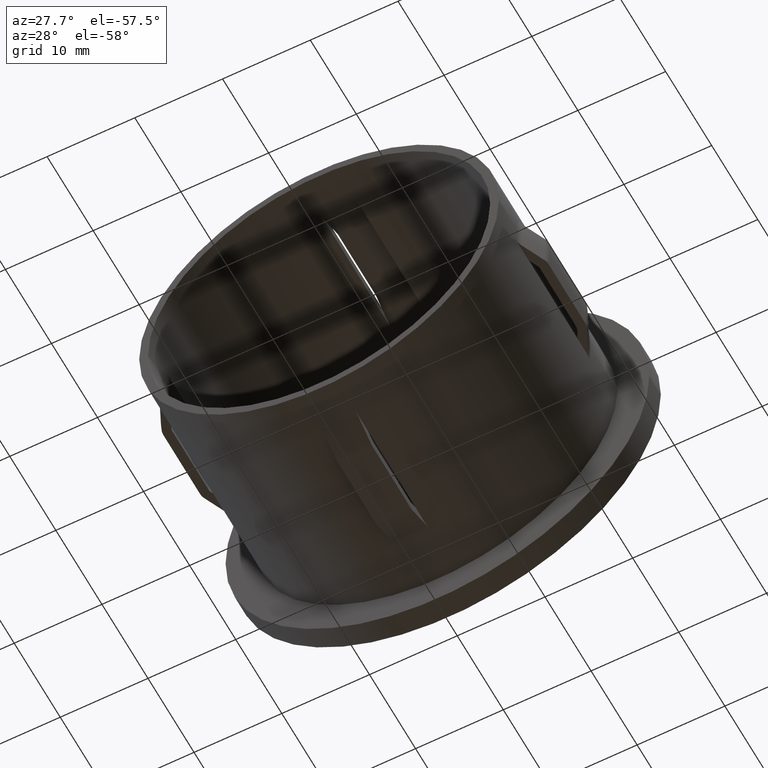
[diagram: clean part render]
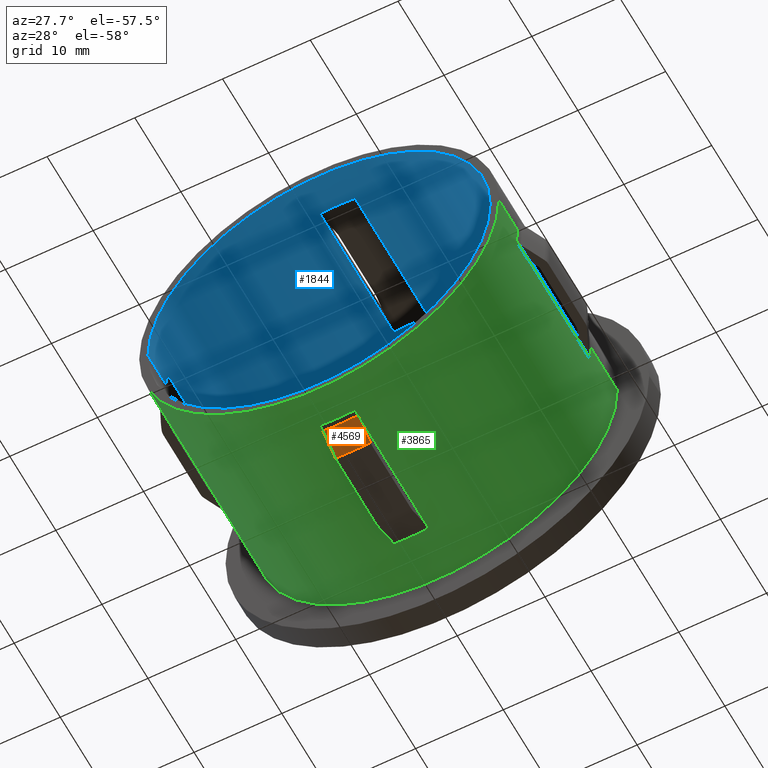
[diagram: same view with three faces highlighted in distinct colors, each labeled with its STEP entity id]
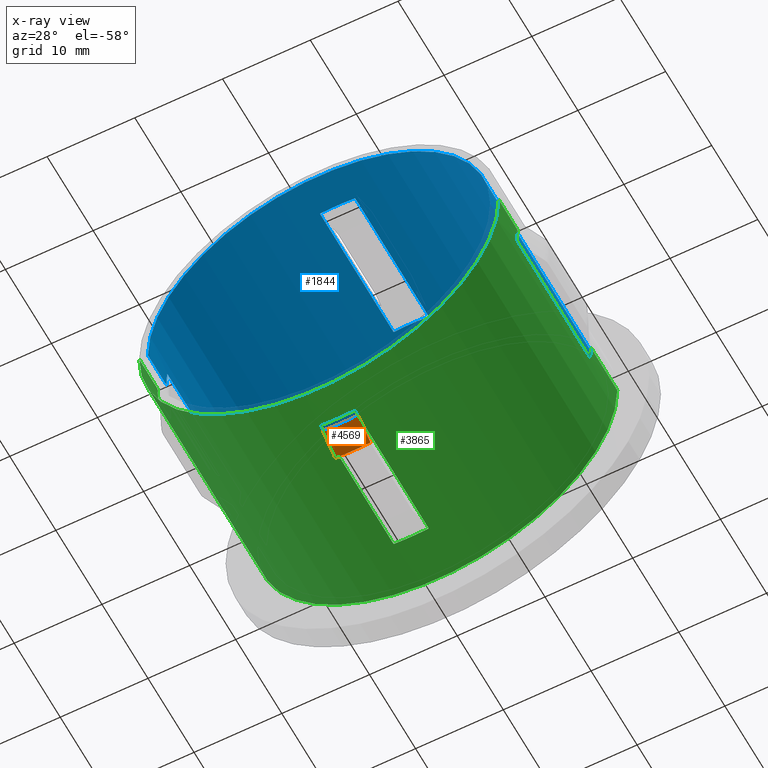
[diagram: x-ray of the same camera — body ghosted, the three highlighted faces saturated]
A machine part, auxiliary view with three faces highlighted in distinct colors.
The next image is the same camera in x-ray (body ghosted, the three faces saturated) — at least one of them is partly hidden behind the body in this view.
Their STEP definitions:

[orange] entity #4569 — the highlighted conical surface has half-angle 24.912 deg.
#146 = CARTESIAN_POINT ( 'NONE',  ( 3.795844060102767100E-015, 4.631843609663177700, 0.0000000000000000000 ) ) ;
#449 = CONICAL_SURFACE ( 'NONE', #12024, 20.63956857838117600, 0.4348000597357523100 ) ;
#711 = VERTEX_POINT ( 'NONE', #8914 ) ;
#966 = DIRECTION ( 'NONE',  ( -1.714505518806297100E-016, 1.000000000000000000, -0.0000000000000000000 ) ) ;
#1346 = CARTESIAN_POINT ( 'NONE',  ( -1.999999999999996200, 4.631843609663177700, -20.54243878174399300 ) ) ;
#1463 = DIRECTION ( 'NONE',  ( -1.000000000000000000, -1.680968736714618500E-016, 0.0000000000000000000 ) ) ;
#1592 = CARTESIAN_POINT ( 'NONE',  ( -1.999999999999995800, 7.368156390336815200, -21.81895976167198700 ) ) ;
#1671 = EDGE_CURVE ( 'NONE', #13816, #711, #5417, .T. ) ;
#1934 = VERTEX_POINT ( 'NONE', #1346 ) ;
#2588 = CIRCLE ( 'NONE', #8925, 20.63956857838117600 ) ;
#2893 = CARTESIAN_POINT ( 'NONE',  ( -1.999999999999995800, 6.863478173314466500, -21.58358256235698400 ) ) ;
#3004 = CARTESIAN_POINT ( 'NONE',  ( -1.999999999999995800, 7.368156390336815200, -21.81895976167198700 ) ) ;
#3233 = ORIENTED_EDGE ( 'NONE', *, *, #8762, .F. ) ;
#3391 = CARTESIAN_POINT ( 'NONE',  ( 2.000000000000004900, 6.863478173314466500, -21.58358256235698400 ) ) ;
#4178 = CARTESIAN_POINT ( 'NONE',  ( -1.999999999999996200, 6.358812098657115700, -21.34817932616023500 ) ) ;
#4514 = CARTESIAN_POINT ( 'NONE',  ( -1.999999999999996200, 4.631843609663177700, -20.54243878174399300 ) ) ;
#4569 = ADVANCED_FACE ( 'NONE', ( #12762 ), #449, .T. ) ;
#4913 = ORIENTED_EDGE ( 'NONE', *, *, #5712, .F. ) ;
#5276 = DIRECTION ( 'NONE',  ( -1.714505518806297100E-016, 1.000000000000000000, -0.0000000000000000000 ) ) ;
#5417 = B_SPLINE_CURVE_WITH_KNOTS ( 'NONE', 3,
 ( #7139, #3391, #10830, #6962, #8410, #5931, #15859 ),
 .UNSPECIFIED., .F., .F.,
 ( 4, 3, 4 ),
 ( 0.004488079101592272600, 0.006158684593522789300, 0.007507501781903045500 ),
 .UNSPECIFIED. ) ;
#5515 = CARTESIAN_POINT ( 'NONE',  ( -1.999999999999996200, 5.039272975901720700, -20.73256144329573300 ) ) ;
#5712 = EDGE_CURVE ( 'NONE', #13816, #14823, #15327, .T. ) ;
#5931 = CARTESIAN_POINT ( 'NONE',  ( 2.000000000000004900, 5.039272975901720700, -20.73256144329573300 ) ) ;
#6147 = CARTESIAN_POINT ( 'NONE',  ( 3.795844060102767100E-015, 4.631843609663177700, 0.0000000000000000000 ) ) ;
#6869 = ORIENTED_EDGE ( 'NONE', *, *, #1671, .T. ) ;
#6962 = CARTESIAN_POINT ( 'NONE',  ( 2.000000000000004900, 5.854159429651500300, -21.11274735645403700 ) ) ;
#7002 = EDGE_CURVE ( 'NONE', #711, #1934, #2588, .T. ) ;
#7115 = B_SPLINE_CURVE_WITH_KNOTS ( 'NONE', 3,
 ( #1592, #2893, #4178, #13050, #11847, #5515, #4514 ),
 .UNSPECIFIED., .F., .F.,
 ( 4, 3, 4 ),
 ( 0.004488079101592272600, 0.006158684593522790200, 0.007507501781903045500 ),
 .UNSPECIFIED. ) ;
#7139 = CARTESIAN_POINT ( 'NONE',  ( 2.000000000000004900, 7.368156390336815200, -21.81895976167198700 ) ) ;
#8410 = CARTESIAN_POINT ( 'NONE',  ( 2.000000000000004900, 5.446711832693329000, -20.92266376788819200 ) ) ;
#8654 = DIRECTION ( 'NONE',  ( -1.714505518806297100E-016, 1.000000000000000000, -0.0000000000000000000 ) ) ;
#8762 = EDGE_CURVE ( 'NONE', #14823, #1934, #7115, .T. ) ;
#8914 = CARTESIAN_POINT ( 'NONE',  ( 2.000000000000004900, 4.631843609663175900, -20.54243878174399600 ) ) ;
#8925 = AXIS2_PLACEMENT_3D ( 'NONE', #6147, #966, #12498 ) ;
#9951 = CARTESIAN_POINT ( 'NONE',  ( 2.000000000000004900, 7.368156390336815200, -21.81895976167198700 ) ) ;
#10236 = ORIENTED_EDGE ( 'NONE', *, *, #7002, .T. ) ;
#10279 = EDGE_LOOP ( 'NONE', ( #4913, #6869, #10236, #3233 ) ) ;
#10830 = CARTESIAN_POINT ( 'NONE',  ( 2.000000000000004900, 6.358812098657116600, -21.34817932616023500 ) ) ;
#11288 = DIRECTION ( 'NONE',  ( -1.000000000000000000, -1.583468113973485200E-016, 0.0000000000000000000 ) ) ;
#11847 = CARTESIAN_POINT ( 'NONE',  ( -1.999999999999996200, 5.446711832693328100, -20.92266376788819200 ) ) ;
#12024 = AXIS2_PLACEMENT_3D ( 'NONE', #146, #5276, #1463 ) ;
#12498 = DIRECTION ( 'NONE',  ( -1.000000000000000000, -1.680968736714618500E-016, 0.0000000000000000000 ) ) ;
#12506 = CARTESIAN_POINT ( 'NONE',  ( 3.326701723738251600E-015, 7.368156390336815200, 0.0000000000000000000 ) ) ;
#12762 = FACE_OUTER_BOUND ( 'NONE', #10279, .T. ) ;
#13050 = CARTESIAN_POINT ( 'NONE',  ( -1.999999999999996200, 5.854159429651499400, -21.11274735645403700 ) ) ;
#13816 = VERTEX_POINT ( 'NONE', #9951 ) ;
#14823 = VERTEX_POINT ( 'NONE', #3004 ) ;
#15327 = CIRCLE ( 'NONE', #15841, 21.91043142161882100 ) ;
#15841 = AXIS2_PLACEMENT_3D ( 'NONE', #12506, #8654, #11288 ) ;
#15859 = CARTESIAN_POINT ( 'NONE',  ( 2.000000000000004900, 4.631843609663175900, -20.54243878174399600 ) ) ;

[blue] entity #1844 — the highlighted cylindrical surface (partial cylindrical patch) has radius 19.5 mm, axis along (-0, 1, -0).
#3 = CIRCLE ( 'NONE', #8069, 19.50000000000000400 ) ;
#83 = CARTESIAN_POINT ( 'NONE',  ( 19.50000000000000400, 4.000000000000000000, 2.388061258337339300E-015 ) ) ;
#166 = CARTESIAN_POINT ( 'NONE',  ( -2.449293598294708900E-016, 28.19999999999999900, 0.0000000000000000000 ) ) ;
#264 = FACE_OUTER_BOUND ( 'NONE', #10807, .T. ) ;
#343 = CARTESIAN_POINT ( 'NONE',  ( 19.50000000000000400, -1.261611902813349400E-016, 2.388061258337339300E-015 ) ) ;
#522 = CARTESIAN_POINT ( 'NONE',  ( 1.836970198721037800E-016, 25.69999999999999600, 0.0000000000000000000 ) ) ;
#818 = CARTESIAN_POINT ( 'NONE',  ( 2.000000000000004900, 4.000000000008302700, 19.39716474127082400 ) ) ;
#883 = CIRCLE ( 'NONE', #6111, 19.50000000000000400 ) ;
#1295 = DIRECTION ( 'NONE',  ( -1.000000000000000000, -1.779203565104417600E-016, 0.0000000000000000000 ) ) ;
#1448 = ORIENTED_EDGE ( 'NONE', *, *, #8375, .T. ) ;
#1487 = AXIS2_PLACEMENT_3D ( 'NONE', #3052, #11956, #8146 ) ;
#1562 = CIRCLE ( 'NONE', #13412, 19.50000000000000000 ) ;
#1640 = CARTESIAN_POINT ( 'NONE',  ( 19.50000000000000400, 28.20000000000000300, 2.388061258337339300E-015 ) ) ;
#1663 = CARTESIAN_POINT ( 'NONE',  ( -19.39716474127082100, 3.999999999999993300, 2.000000000000000000 ) ) ;
#1787 = ORIENTED_EDGE ( 'NONE', *, *, #8908, .T. ) ;
#1804 = EDGE_CURVE ( 'NONE', #3043, #13221, #883, .T. ) ;
#1844 = ADVANCED_FACE ( 'NONE', ( #264, #10654 ), #6436, .F. ) ;
#1977 = EDGE_CURVE ( 'NONE', #6682, #16232, #5264, .T. ) ;
#2231 = CARTESIAN_POINT ( 'NONE',  ( 2.000000000000004900, 51.72464896776082800, 19.39716474127082400 ) ) ;
#2837 = VECTOR ( 'NONE', #10950, 1000.000000000000000 ) ;
#2887 = EDGE_CURVE ( 'NONE', #9635, #12101, #5045, .T. ) ;
#2943 = VECTOR ( 'NONE', #14405, 1000.000000000000000 ) ;
#3043 = VERTEX_POINT ( 'NONE', #11777 ) ;
#3052 = CARTESIAN_POINT ( 'NONE',  ( 3.904173995681768100E-015, 3.999999999999996400, 0.0000000000000000000 ) ) ;
#3207 = CARTESIAN_POINT ( 'NONE',  ( 2.000000000000007100, 19.99999999999999300, 19.39716474127082400 ) ) ;
#3209 = DIRECTION ( 'NONE',  ( -1.000000000000000000, -1.714505518806296900E-016, 0.0000000000000000000 ) ) ;
#3231 = CARTESIAN_POINT ( 'NONE',  ( -19.50000000000000400, 28.19999999999999600, 0.0000000000000000000 ) ) ;
#3337 = LINE ( 'NONE', #10120, #16411 ) ;
#3363 = LINE ( 'NONE', #1640, #2943 ) ;
#3375 = EDGE_CURVE ( 'NONE', #11414, #9888, #6809, .T. ) ;
#3446 = DIRECTION ( 'NONE',  ( -1.714505518806297100E-016, 1.000000000000000000, -0.0000000000000000000 ) ) ;
#3858 = EDGE_CURVE ( 'NONE', #9635, #4563, #9605, .T. ) ;
#4230 = CARTESIAN_POINT ( 'NONE',  ( -19.49999999999999600, -6.812732713625892700E-015, 0.0000000000000000000 ) ) ;
#4258 = ORIENTED_EDGE ( 'NONE', *, *, #6521, .F. ) ;
#4472 = AXIS2_PLACEMENT_3D ( 'NONE', #6847, #15735, #3209 ) ;
#4563 = VERTEX_POINT ( 'NONE', #5109 ) ;
#4985 = EDGE_CURVE ( 'NONE', #8084, #11954, #14746, .T. ) ;
#5045 = CIRCLE ( 'NONE', #11767, 19.50000000000000400 ) ;
#5049 = ORIENTED_EDGE ( 'NONE', *, *, #9883, .F. ) ;
#5101 = CARTESIAN_POINT ( 'NONE',  ( 3.904173995681768100E-015, 3.999999999999996400, 0.0000000000000000000 ) ) ;
#5109 = CARTESIAN_POINT ( 'NONE',  ( -1.999999999999996200, 4.000000000016615200, 19.39716474127082100 ) ) ;
#5129 = DIRECTION ( 'NONE',  ( 0.0000000000000000000, -1.000000000000000000, 0.0000000000000000000 ) ) ;
#5264 = CIRCLE ( 'NONE', #8969, 19.50000000000000000 ) ;
#5661 = CARTESIAN_POINT ( 'NONE',  ( -19.39716474127082800, 19.99999999999998900, 2.000000000000000000 ) ) ;
#6018 = ORIENTED_EDGE ( 'NONE', *, *, #6097, .F. ) ;
#6091 = CARTESIAN_POINT ( 'NONE',  ( -19.50000000000000400, 19.99999999999998900, 0.0000000000000000000 ) ) ;
#6097 = EDGE_CURVE ( 'NONE', #12101, #12599, #12751, .T. ) ;
#6111 = AXIS2_PLACEMENT_3D ( 'NONE', #7717, #10299, #6440 ) ;
#6213 = CARTESIAN_POINT ( 'NONE',  ( 3.904173995681768100E-015, 3.999999999999996400, 0.0000000000000000000 ) ) ;
#6436 = CYLINDRICAL_SURFACE ( 'NONE', #15785, 19.50000000000000400 ) ;
#6440 = DIRECTION ( 'NONE',  ( -1.000000000000000000, -1.779203565104417100E-016, 0.0000000000000000000 ) ) ;
#6484 = DIRECTION ( 'NONE',  ( -1.714505518806297100E-016, 1.000000000000000000, -0.0000000000000000000 ) ) ;
#6521 = EDGE_CURVE ( 'NONE', #10727, #11197, #3, .T. ) ;
#6638 = VERTEX_POINT ( 'NONE', #83 ) ;
#6682 = VERTEX_POINT ( 'NONE', #15527 ) ;
#6769 = CARTESIAN_POINT ( 'NONE',  ( 19.39716474127082800, 51.72464896776082800, 2.000000000000000000 ) ) ;
#6809 = CIRCLE ( 'NONE', #13900, 19.50000000000000000 ) ;
#6847 = CARTESIAN_POINT ( 'NONE',  ( 4.589976203204287100E-015, -3.469446951953614200E-015, 0.0000000000000000000 ) ) ;
#6883 = EDGE_CURVE ( 'NONE', #10727, #6682, #12364, .T. ) ;
#6963 = CARTESIAN_POINT ( 'NONE',  ( -1.999999999999996200, 51.72464896776082800, 19.39716474127082100 ) ) ;
#7370 = DIRECTION ( 'NONE',  ( -1.714505518806297100E-016, 1.000000000000000000, -0.0000000000000000000 ) ) ;
#7425 = DIRECTION ( 'NONE',  ( -1.000000000000000000, -1.779203565104417100E-016, 0.0000000000000000000 ) ) ;
#7450 = ORIENTED_EDGE ( 'NONE', *, *, #2887, .F. ) ;
#7551 = VECTOR ( 'NONE', #3446, 1000.000000000000000 ) ;
#7717 = CARTESIAN_POINT ( 'NONE',  ( 1.160965165591693700E-015, 19.99999999999999300, 0.0000000000000000000 ) ) ;
#8013 = DIRECTION ( 'NONE',  ( -1.000000000000000000, -1.779203565104417600E-016, 0.0000000000000000000 ) ) ;
#8069 = AXIS2_PLACEMENT_3D ( 'NONE', #14917, #16158, #7425 ) ;
#8084 = VERTEX_POINT ( 'NONE', #4230 ) ;
#8146 = DIRECTION ( 'NONE',  ( -1.000000000000000000, -1.779203565104417600E-016, 0.0000000000000000000 ) ) ;
#8375 = EDGE_CURVE ( 'NONE', #13593, #6638, #1562, .T. ) ;
#8405 = CARTESIAN_POINT ( 'NONE',  ( -1.999999999999995300, 19.99999999999999300, 19.39716474127082800 ) ) ;
#8623 = ORIENTED_EDGE ( 'NONE', *, *, #6883, .T. ) ;
#8810 = ORIENTED_EDGE ( 'NONE', *, *, #1977, .T. ) ;
#8874 = CIRCLE ( 'NONE', #1487, 19.50000000000000000 ) ;
#8908 = EDGE_CURVE ( 'NONE', #8084, #11414, #12518, .T. ) ;
#8924 = DIRECTION ( 'NONE',  ( -1.714505518806297100E-016, 1.000000000000000000, -0.0000000000000000000 ) ) ;
#8939 = ORIENTED_EDGE ( 'NONE', *, *, #3375, .T. ) ;
#8969 = AXIS2_PLACEMENT_3D ( 'NONE', #522, #10605, #8013 ) ;
#9064 = DIRECTION ( 'NONE',  ( -1.000000000000000000, -1.779203565104417100E-016, 0.0000000000000000000 ) ) ;
#9297 = LINE ( 'NONE', #6769, #14431 ) ;
#9443 = DIRECTION ( 'NONE',  ( 0.0000000000000000000, -1.000000000000000000, 0.0000000000000000000 ) ) ;
#9561 = CARTESIAN_POINT ( 'NONE',  ( -19.49999999999999600, 3.999999999999993300, 0.0000000000000000000 ) ) ;
#9605 = LINE ( 'NONE', #6963, #2837 ) ;
#9635 = VERTEX_POINT ( 'NONE', #8405 ) ;
#9883 = EDGE_CURVE ( 'NONE', #11197, #9888, #15468, .T. ) ;
#9888 = VERTEX_POINT ( 'NONE', #1663 ) ;
#10120 = CARTESIAN_POINT ( 'NONE',  ( 19.50000000000000400, 28.20000000000000300, 2.388061258337339300E-015 ) ) ;
#10126 = VECTOR ( 'NONE', #10745, 1000.000000000000000 ) ;
#10265 = ORIENTED_EDGE ( 'NONE', *, *, #4985, .F. ) ;
#10299 = DIRECTION ( 'NONE',  ( -1.714505518806297100E-016, 1.000000000000000000, -0.0000000000000000000 ) ) ;
#10404 = EDGE_CURVE ( 'NONE', #13221, #16232, #3363, .T. ) ;
#10585 = DIRECTION ( 'NONE',  ( 0.0000000000000000000, -1.000000000000000000, 0.0000000000000000000 ) ) ;
#10605 = DIRECTION ( 'NONE',  ( -1.714505518806297100E-016, 1.000000000000000000, -0.0000000000000000000 ) ) ;
#10654 = FACE_BOUND ( 'NONE', #12807, .T. ) ;
#10727 = VERTEX_POINT ( 'NONE', #6091 ) ;
#10745 = DIRECTION ( 'NONE',  ( -1.714505518806297100E-016, 1.000000000000000000, -0.0000000000000000000 ) ) ;
#10807 = EDGE_LOOP ( 'NONE', ( #13812, #10265, #1787, #8939, #5049, #4258, #8623, #8810, #13620, #14455, #14368, #1448 ) ) ;
#10950 = DIRECTION ( 'NONE',  ( 0.0000000000000000000, -1.000000000000000000, 0.0000000000000000000 ) ) ;
#11197 = VERTEX_POINT ( 'NONE', #5661 ) ;
#11414 = VERTEX_POINT ( 'NONE', #9561 ) ;
#11578 = DIRECTION ( 'NONE',  ( -1.714505518806297100E-016, 1.000000000000000000, -0.0000000000000000000 ) ) ;
#11596 = EDGE_CURVE ( 'NONE', #4563, #12599, #8874, .T. ) ;
#11747 = CARTESIAN_POINT ( 'NONE',  ( -19.39716474127082100, 51.72464896776082800, 2.000000000000000000 ) ) ;
#11767 = AXIS2_PLACEMENT_3D ( 'NONE', #16472, #7370, #16268 ) ;
#11777 = CARTESIAN_POINT ( 'NONE',  ( 19.39716474127082800, 19.99999999999998900, 2.000000000000000000 ) ) ;
#11954 = VERTEX_POINT ( 'NONE', #343 ) ;
#11956 = DIRECTION ( 'NONE',  ( -1.714505518806297100E-016, 1.000000000000000000, -0.0000000000000000000 ) ) ;
#12101 = VERTEX_POINT ( 'NONE', #3207 ) ;
#12133 = VECTOR ( 'NONE', #10585, 1000.000000000000000 ) ;
#12364 = LINE ( 'NONE', #14903, #7551 ) ;
#12518 = LINE ( 'NONE', #3231, #10126 ) ;
#12599 = VERTEX_POINT ( 'NONE', #818 ) ;
#12751 = LINE ( 'NONE', #2231, #15532 ) ;
#12807 = EDGE_LOOP ( 'NONE', ( #13984, #6018, #7450, #15006 ) ) ;
#13180 = CARTESIAN_POINT ( 'NONE',  ( 19.50000000000000400, 19.99999999999999600, 2.388061258337339300E-015 ) ) ;
#13221 = VERTEX_POINT ( 'NONE', #13180 ) ;
#13412 = AXIS2_PLACEMENT_3D ( 'NONE', #5101, #8924, #1295 ) ;
#13593 = VERTEX_POINT ( 'NONE', #15429 ) ;
#13620 = ORIENTED_EDGE ( 'NONE', *, *, #10404, .F. ) ;
#13812 = ORIENTED_EDGE ( 'NONE', *, *, #15842, .F. ) ;
#13900 = AXIS2_PLACEMENT_3D ( 'NONE', #6213, #16369, #15044 ) ;
#13984 = ORIENTED_EDGE ( 'NONE', *, *, #11596, .T. ) ;
#14368 = ORIENTED_EDGE ( 'NONE', *, *, #14924, .T. ) ;
#14405 = DIRECTION ( 'NONE',  ( -1.714505518806297100E-016, 1.000000000000000000, -0.0000000000000000000 ) ) ;
#14431 = VECTOR ( 'NONE', #9443, 1000.000000000000000 ) ;
#14455 = ORIENTED_EDGE ( 'NONE', *, *, #1804, .F. ) ;
#14746 = CIRCLE ( 'NONE', #4472, 19.50000000000000000 ) ;
#14903 = CARTESIAN_POINT ( 'NONE',  ( -19.50000000000000400, 28.19999999999999600, 0.0000000000000000000 ) ) ;
#14917 = CARTESIAN_POINT ( 'NONE',  ( 1.160965165591693700E-015, 19.99999999999999300, 0.0000000000000000000 ) ) ;
#14924 = EDGE_CURVE ( 'NONE', #3043, #13593, #9297, .T. ) ;
#15006 = ORIENTED_EDGE ( 'NONE', *, *, #3858, .T. ) ;
#15044 = DIRECTION ( 'NONE',  ( -1.000000000000000000, -1.779203565104417600E-016, 0.0000000000000000000 ) ) ;
#15244 = CARTESIAN_POINT ( 'NONE',  ( 19.50000000000000000, 25.69999999999999900, 2.388061258337338900E-015 ) ) ;
#15429 = CARTESIAN_POINT ( 'NONE',  ( 19.39716474127082800, 4.000000000000000000, 1.999999999999999600 ) ) ;
#15468 = LINE ( 'NONE', #11747, #12133 ) ;
#15527 = CARTESIAN_POINT ( 'NONE',  ( -19.50000000000000000, 25.69999999999999200, 0.0000000000000000000 ) ) ;
#15532 = VECTOR ( 'NONE', #5129, 1000.000000000000000 ) ;
#15735 = DIRECTION ( 'NONE',  ( -1.714505518806297100E-016, 1.000000000000000000, -0.0000000000000000000 ) ) ;
#15785 = AXIS2_PLACEMENT_3D ( 'NONE', #166, #11578, #9064 ) ;
#15842 = EDGE_CURVE ( 'NONE', #11954, #6638, #3337, .T. ) ;
#16158 = DIRECTION ( 'NONE',  ( -1.714505518806297100E-016, 1.000000000000000000, -0.0000000000000000000 ) ) ;
#16232 = VERTEX_POINT ( 'NONE', #15244 ) ;
#16268 = DIRECTION ( 'NONE',  ( -1.000000000000000000, -1.779203565104417100E-016, 0.0000000000000000000 ) ) ;
#16369 = DIRECTION ( 'NONE',  ( -1.714505518806297100E-016, 1.000000000000000000, -0.0000000000000000000 ) ) ;
#16411 = VECTOR ( 'NONE', #6484, 1000.000000000000000 ) ;
#16472 = CARTESIAN_POINT ( 'NONE',  ( 1.160965165591693700E-015, 19.99999999999999300, 0.0000000000000000000 ) ) ;

[green] entity #3865 — the highlighted cylindrical surface (partial cylindrical patch) has radius 20.5 mm, axis along (-0, 1, -0).
#16 = CIRCLE ( 'NONE', #10200, 20.50000000000000000 ) ;
#22 = DIRECTION ( 'NONE',  ( 0.0000000000000000000, -1.000000000000000000, 0.0000000000000000000 ) ) ;
#52 = CARTESIAN_POINT ( 'NONE',  ( -20.40220576310316500, 20.00000000000000000, -2.000000000000000000 ) ) ;
#56 = AXIS2_PLACEMENT_3D ( 'NONE', #1912, #13358, #5646 ) ;
#75 = CIRCLE ( 'NONE', #5582, 20.49999999999999600 ) ;
#416 = VERTEX_POINT ( 'NONE', #3109 ) ;
#437 = ORIENTED_EDGE ( 'NONE', *, *, #6281, .T. ) ;
#556 = VERTEX_POINT ( 'NONE', #8649 ) ;
#599 = EDGE_CURVE ( 'NONE', #7735, #9993, #13129, .T. ) ;
#619 = VECTOR ( 'NONE', #12541, 1000.000000000000000 ) ;
#643 = VECTOR ( 'NONE', #16328, 1000.000000000000000 ) ;
#1010 = VECTOR ( 'NONE', #12968, 1000.000000000000000 ) ;
#1189 = EDGE_CURVE ( 'NONE', #15552, #10455, #14598, .T. ) ;
#1377 = CARTESIAN_POINT ( 'NONE',  ( 3.904173995681768100E-015, 3.999999999999996400, 0.0000000000000000000 ) ) ;
#1548 = VECTOR ( 'NONE', #2843, 1000.000000000000000 ) ;
#1629 = VECTOR ( 'NONE', #12592, 1000.000000000000000 ) ;
#1639 = ORIENTED_EDGE ( 'NONE', *, *, #599, .F. ) ;
#1774 = AXIS2_PLACEMENT_3D ( 'NONE', #12723, #7801, #11610 ) ;
#1897 = EDGE_CURVE ( 'NONE', #4029, #16092, #75, .T. ) ;
#1912 = CARTESIAN_POINT ( 'NONE',  ( -2.449293598294708900E-016, 28.19999999999999900, 0.0000000000000000000 ) ) ;
#1919 = AXIS2_PLACEMENT_3D ( 'NONE', #7306, #13690, #7463 ) ;
#1958 = DIRECTION ( 'NONE',  ( -1.714505518806297100E-016, 1.000000000000000000, -0.0000000000000000000 ) ) ;
#1976 = VECTOR ( 'NONE', #15932, 1000.000000000000000 ) ;
#2179 = DIRECTION ( 'NONE',  ( -1.000000000000000000, -1.692413147294446000E-016, 0.0000000000000000000 ) ) ;
#2333 = ORIENTED_EDGE ( 'NONE', *, *, #2349, .T. ) ;
#2349 = EDGE_CURVE ( 'NONE', #4517, #12691, #8829, .T. ) ;
#2375 = EDGE_CURVE ( 'NONE', #14462, #7395, #11430, .T. ) ;
#2392 = CARTESIAN_POINT ( 'NONE',  ( -20.40220576310316500, 20.00000000000000000, -2.000000000000000000 ) ) ;
#2459 = EDGE_CURVE ( 'NONE', #12691, #12992, #6420, .T. ) ;
#2539 = CARTESIAN_POINT ( 'NONE',  ( 1.160965165591693700E-015, 19.99999999999999300, 0.0000000000000000000 ) ) ;
#2843 = DIRECTION ( 'NONE',  ( -1.714505518806297100E-016, 1.000000000000000000, -0.0000000000000000000 ) ) ;
#2902 = DIRECTION ( 'NONE',  ( -1.714505518806297100E-016, 1.000000000000000000, -0.0000000000000000000 ) ) ;
#2982 = CARTESIAN_POINT ( 'NONE',  ( -20.49999999999999600, 28.19999999999999600, 0.0000000000000000000 ) ) ;
#3074 = VECTOR ( 'NONE', #11602, 1000.000000000000000 ) ;
#3109 = CARTESIAN_POINT ( 'NONE',  ( 20.50000000000000700, 4.528936159929513800E-017, 2.510525938252074900E-015 ) ) ;
#3143 = EDGE_CURVE ( 'NONE', #14049, #15161, #7596, .T. ) ;
#3240 = DIRECTION ( 'NONE',  ( -1.714505518806297100E-016, 1.000000000000000000, -0.0000000000000000000 ) ) ;
#3289 = CARTESIAN_POINT ( 'NONE',  ( -20.49999999999999600, 25.69999999999999200, 0.0000000000000000000 ) ) ;
#3327 = CARTESIAN_POINT ( 'NONE',  ( -20.49999999999999300, 3.999999999999993300, 0.0000000000000000000 ) ) ;
#3339 = EDGE_CURVE ( 'NONE', #4517, #4029, #13578, .T. ) ;
#3405 = VERTEX_POINT ( 'NONE', #13666 ) ;
#3460 = VERTEX_POINT ( 'NONE', #2392 ) ;
#3781 = CARTESIAN_POINT ( 'NONE',  ( 20.40220576310317200, 20.00000000000000000, -2.000000000000000000 ) ) ;
#3811 = ORIENTED_EDGE ( 'NONE', *, *, #9910, .T. ) ;
#3831 = DIRECTION ( 'NONE',  ( -0.0000000000000000000, -1.000000000000000000, -0.0000000000000000000 ) ) ;
#3865 = ADVANCED_FACE ( 'NONE', ( #15345, #11598 ), #8608, .T. ) ;
#4029 = VERTEX_POINT ( 'NONE', #4773 ) ;
#4093 = AXIS2_PLACEMENT_3D ( 'NONE', #2539, #13905, #7739 ) ;
#4098 = EDGE_CURVE ( 'NONE', #7395, #556, #8592, .T. ) ;
#4239 = CARTESIAN_POINT ( 'NONE',  ( -20.49999999999999600, 28.19999999999999600, 0.0000000000000000000 ) ) ;
#4473 = ORIENTED_EDGE ( 'NONE', *, *, #11438, .T. ) ;
#4516 = CARTESIAN_POINT ( 'NONE',  ( 2.000000000000005300, 19.99999999999999300, -20.40220576310316900 ) ) ;
#4517 = VERTEX_POINT ( 'NONE', #6209 ) ;
#4561 = EDGE_CURVE ( 'NONE', #556, #9677, #15326, .T. ) ;
#4773 = CARTESIAN_POINT ( 'NONE',  ( 20.49999999999999600, 25.69999999999999900, 2.510525938252074100E-015 ) ) ;
#4842 = EDGE_CURVE ( 'NONE', #12992, #3405, #4857, .T. ) ;
#4857 = LINE ( 'NONE', #10556, #1629 ) ;
#4912 = CARTESIAN_POINT ( 'NONE',  ( 2.000000000000004900, 3.999999999999993300, -20.40220576310316900 ) ) ;
#5146 = ORIENTED_EDGE ( 'NONE', *, *, #2375, .F. ) ;
#5190 = EDGE_CURVE ( 'NONE', #9993, #15780, #10819, .T. ) ;
#5231 = ORIENTED_EDGE ( 'NONE', *, *, #1897, .F. ) ;
#5519 = VECTOR ( 'NONE', #3831, 1000.000000000000000 ) ;
#5522 = EDGE_CURVE ( 'NONE', #3405, #10455, #14529, .T. ) ;
#5574 = DIRECTION ( 'NONE',  ( -1.000000000000000000, -1.692413147294446000E-016, 0.0000000000000000000 ) ) ;
#5582 = AXIS2_PLACEMENT_3D ( 'NONE', #12754, #14008, #15296 ) ;
#5646 = DIRECTION ( 'NONE',  ( -1.000000000000000000, -1.692413147294446200E-016, 0.0000000000000000000 ) ) ;
#5668 = DIRECTION ( 'NONE',  ( 0.0000000000000000000, -1.000000000000000000, 0.0000000000000000000 ) ) ;
#5807 = EDGE_CURVE ( 'NONE', #9004, #16092, #8383, .T. ) ;
#6161 = DIRECTION ( 'NONE',  ( -0.0000000000000000000, -1.000000000000000000, -0.0000000000000000000 ) ) ;
#6209 = CARTESIAN_POINT ( 'NONE',  ( 20.50000000000000000, 19.99999999999999600, 2.510525938252074500E-015 ) ) ;
#6257 = ORIENTED_EDGE ( 'NONE', *, *, #2459, .T. ) ;
#6281 = EDGE_CURVE ( 'NONE', #3460, #9004, #16, .T. ) ;
#6372 = CIRCLE ( 'NONE', #13804, 20.50000000000000000 ) ;
#6404 = EDGE_CURVE ( 'NONE', #416, #14806, #6372, .T. ) ;
#6420 = LINE ( 'NONE', #11773, #3074 ) ;
#6598 = EDGE_CURVE ( 'NONE', #3460, #14462, #10985, .T. ) ;
#6703 = ORIENTED_EDGE ( 'NONE', *, *, #10639, .F. ) ;
#6730 = CARTESIAN_POINT ( 'NONE',  ( -1.999999999999996200, 20.00000000000000000, -20.40220576310316900 ) ) ;
#6773 = CARTESIAN_POINT ( 'NONE',  ( 1.160965165591693700E-015, 19.99999999999999300, 0.0000000000000000000 ) ) ;
#6785 = CARTESIAN_POINT ( 'NONE',  ( 2.000000000000004900, 17.29465829608850300, -20.40220576310316900 ) ) ;
#6801 = DIRECTION ( 'NONE',  ( -1.714505518806297100E-016, 1.000000000000000000, -0.0000000000000000000 ) ) ;
#6912 = VERTEX_POINT ( 'NONE', #14689 ) ;
#6921 = LINE ( 'NONE', #13278, #7319 ) ;
#7168 = CARTESIAN_POINT ( 'NONE',  ( 20.49999999999999600, 28.20000000000000300, 2.510525938252074100E-015 ) ) ;
#7173 = CARTESIAN_POINT ( 'NONE',  ( -20.40220576310316500, 17.29465829608850300, -2.000000000000000000 ) ) ;
#7225 = ORIENTED_EDGE ( 'NONE', *, *, #5190, .F. ) ;
#7230 = VECTOR ( 'NONE', #22, 1000.000000000000000 ) ;
#7295 = VECTOR ( 'NONE', #6801, 1000.000000000000000 ) ;
#7306 = CARTESIAN_POINT ( 'NONE',  ( 3.904173995681768100E-015, 3.999999999999996400, 0.0000000000000000000 ) ) ;
#7319 = VECTOR ( 'NONE', #5668, 1000.000000000000000 ) ;
#7395 = VERTEX_POINT ( 'NONE', #12064 ) ;
#7440 = CARTESIAN_POINT ( 'NONE',  ( -1.999999999999996200, 17.29465829608850000, -20.40220576310316900 ) ) ;
#7462 = CIRCLE ( 'NONE', #8323, 20.50000000000000000 ) ;
#7463 = DIRECTION ( 'NONE',  ( -1.000000000000000000, -1.692413147294446200E-016, 0.0000000000000000000 ) ) ;
#7596 = LINE ( 'NONE', #6730, #12220 ) ;
#7672 = CARTESIAN_POINT ( 'NONE',  ( 2.000000000000004900, 51.72464896776082800, -20.40220576310316900 ) ) ;
#7735 = VERTEX_POINT ( 'NONE', #6785 ) ;
#7739 = DIRECTION ( 'NONE',  ( -1.000000000000000000, -1.692413147294446000E-016, 0.0000000000000000000 ) ) ;
#7772 = VECTOR ( 'NONE', #16109, 1000.000000000000000 ) ;
#7801 = DIRECTION ( 'NONE',  ( -1.714505518806297100E-016, 1.000000000000000000, -0.0000000000000000000 ) ) ;
#7936 = CARTESIAN_POINT ( 'NONE',  ( -20.49999999999999600, -6.984183265506524500E-015, 0.0000000000000000000 ) ) ;
#7995 = DIRECTION ( 'NONE',  ( -1.000000000000000000, -1.692413147294446200E-016, 0.0000000000000000000 ) ) ;
#8088 = CARTESIAN_POINT ( 'NONE',  ( 20.40220576310317200, 3.999999999999989800, -2.000000000000000000 ) ) ;
#8169 = EDGE_CURVE ( 'NONE', #13692, #7735, #8739, .T. ) ;
#8266 = CARTESIAN_POINT ( 'NONE',  ( 2.000000000000004900, 20.00000000000000000, -20.40220576310316900 ) ) ;
#8318 = LINE ( 'NONE', #4239, #1548 ) ;
#8323 = AXIS2_PLACEMENT_3D ( 'NONE', #11101, #15056, #2179 ) ;
#8383 = LINE ( 'NONE', #2982, #1010 ) ;
#8492 = ORIENTED_EDGE ( 'NONE', *, *, #6598, .F. ) ;
#8592 = LINE ( 'NONE', #52, #619 ) ;
#8608 = CYLINDRICAL_SURFACE ( 'NONE', #56, 20.49999999999999600 ) ;
#8649 = CARTESIAN_POINT ( 'NONE',  ( -20.40220576310316500, 3.999999999999989800, -2.000000000000000000 ) ) ;
#8671 = ORIENTED_EDGE ( 'NONE', *, *, #8169, .F. ) ;
#8710 = ORIENTED_EDGE ( 'NONE', *, *, #6404, .T. ) ;
#8733 = ORIENTED_EDGE ( 'NONE', *, *, #5807, .T. ) ;
#8739 = LINE ( 'NONE', #8266, #1976 ) ;
#8829 = CIRCLE ( 'NONE', #4093, 20.50000000000000000 ) ;
#9004 = VERTEX_POINT ( 'NONE', #9612 ) ;
#9011 = CARTESIAN_POINT ( 'NONE',  ( -1.999999999999996200, 3.999999999999993300, -20.40220576310316900 ) ) ;
#9236 = DIRECTION ( 'NONE',  ( -1.714505518806297100E-016, 1.000000000000000000, -0.0000000000000000000 ) ) ;
#9612 = CARTESIAN_POINT ( 'NONE',  ( -20.50000000000000000, 19.99999999999998900, 0.0000000000000000000 ) ) ;
#9621 = CARTESIAN_POINT ( 'NONE',  ( 4.589976203204287100E-015, -3.469446951953614200E-015, 0.0000000000000000000 ) ) ;
#9656 = ORIENTED_EDGE ( 'NONE', *, *, #12858, .F. ) ;
#9677 = VERTEX_POINT ( 'NONE', #3327 ) ;
#9692 = CARTESIAN_POINT ( 'NONE',  ( 20.40220576310317200, 20.00000000000000000, -2.000000000000000000 ) ) ;
#9842 = ORIENTED_EDGE ( 'NONE', *, *, #1189, .F. ) ;
#9910 = EDGE_CURVE ( 'NONE', #14806, #9677, #8318, .T. ) ;
#9911 = CARTESIAN_POINT ( 'NONE',  ( -20.40220576310316500, 20.00000000000000000, -2.000000000000000000 ) ) ;
#9993 = VERTEX_POINT ( 'NONE', #13228 ) ;
#10077 = CARTESIAN_POINT ( 'NONE',  ( 2.000000000000004900, 20.00000000000000000, -20.40220576310316900 ) ) ;
#10137 = CARTESIAN_POINT ( 'NONE',  ( 20.50000000000000000, 4.000000000000000000, 2.510525938252074500E-015 ) ) ;
#10200 = AXIS2_PLACEMENT_3D ( 'NONE', #6773, #2902, #5574 ) ;
#10207 = VECTOR ( 'NONE', #1958, 1000.000000000000000 ) ;
#10314 = ORIENTED_EDGE ( 'NONE', *, *, #3143, .T. ) ;
#10364 = DIRECTION ( 'NONE',  ( 0.0000000000000000000, -1.000000000000000000, 0.0000000000000000000 ) ) ;
#10455 = VERTEX_POINT ( 'NONE', #8088 ) ;
#10556 = CARTESIAN_POINT ( 'NONE',  ( 20.40220576310317200, 51.72464896776082800, -2.000000000000000000 ) ) ;
#10639 = EDGE_CURVE ( 'NONE', #15780, #15161, #16055, .T. ) ;
#10702 = DIRECTION ( 'NONE',  ( -0.0000000000000000000, -1.000000000000000000, -0.0000000000000000000 ) ) ;
#10703 = ORIENTED_EDGE ( 'NONE', *, *, #13634, .T. ) ;
#10819 = LINE ( 'NONE', #10077, #643 ) ;
#10919 = ORIENTED_EDGE ( 'NONE', *, *, #4098, .F. ) ;
#10921 = LINE ( 'NONE', #11830, #7295 ) ;
#10985 = LINE ( 'NONE', #9911, #11372 ) ;
#11101 = CARTESIAN_POINT ( 'NONE',  ( 1.160965165591693700E-015, 19.99999999999999300, 0.0000000000000000000 ) ) ;
#11194 = CARTESIAN_POINT ( 'NONE',  ( -1.999999999999996200, 20.00000000000000000, -20.40220576310316900 ) ) ;
#11346 = CARTESIAN_POINT ( 'NONE',  ( -20.40220576310316500, 51.72464896776082800, -2.000000000000000000 ) ) ;
#11372 = VECTOR ( 'NONE', #6161, 1000.000000000000000 ) ;
#11430 = LINE ( 'NONE', #11346, #7230 ) ;
#11438 = EDGE_CURVE ( 'NONE', #6912, #12257, #14420, .T. ) ;
#11598 = FACE_BOUND ( 'NONE', #14973, .T. ) ;
#11602 = DIRECTION ( 'NONE',  ( -0.0000000000000000000, -1.000000000000000000, -0.0000000000000000000 ) ) ;
#11610 = DIRECTION ( 'NONE',  ( -1.000000000000000000, -1.692413147294446200E-016, 0.0000000000000000000 ) ) ;
#11773 = CARTESIAN_POINT ( 'NONE',  ( 20.40220576310317200, 20.00000000000000000, -2.000000000000000000 ) ) ;
#11830 = CARTESIAN_POINT ( 'NONE',  ( 20.49999999999999600, 28.20000000000000300, 2.510525938252074100E-015 ) ) ;
#12064 = CARTESIAN_POINT ( 'NONE',  ( -20.40220576310316500, 6.705341703911484400, -2.000000000000000000 ) ) ;
#12095 = ORIENTED_EDGE ( 'NONE', *, *, #5522, .T. ) ;
#12148 = DIRECTION ( 'NONE',  ( -1.000000000000000000, -1.714505518806297600E-016, 0.0000000000000000000 ) ) ;
#12220 = VECTOR ( 'NONE', #10702, 1000.000000000000000 ) ;
#12257 = VERTEX_POINT ( 'NONE', #7440 ) ;
#12321 = EDGE_CURVE ( 'NONE', #13692, #6912, #7462, .T. ) ;
#12508 = AXIS2_PLACEMENT_3D ( 'NONE', #1377, #9236, #7995 ) ;
#12541 = DIRECTION ( 'NONE',  ( -0.0000000000000000000, -1.000000000000000000, -0.0000000000000000000 ) ) ;
#12592 = DIRECTION ( 'NONE',  ( 0.0000000000000000000, -1.000000000000000000, 0.0000000000000000000 ) ) ;
#12655 = ORIENTED_EDGE ( 'NONE', *, *, #4561, .F. ) ;
#12691 = VERTEX_POINT ( 'NONE', #3781 ) ;
#12723 = CARTESIAN_POINT ( 'NONE',  ( 3.904173995681768100E-015, 3.999999999999996400, 0.0000000000000000000 ) ) ;
#12754 = CARTESIAN_POINT ( 'NONE',  ( 1.836970198721037800E-016, 25.69999999999999600, 0.0000000000000000000 ) ) ;
#12858 = EDGE_CURVE ( 'NONE', #416, #15552, #10921, .T. ) ;
#12968 = DIRECTION ( 'NONE',  ( -1.714505518806297100E-016, 1.000000000000000000, -0.0000000000000000000 ) ) ;
#12992 = VERTEX_POINT ( 'NONE', #16231 ) ;
#13129 = LINE ( 'NONE', #7672, #16489 ) ;
#13228 = CARTESIAN_POINT ( 'NONE',  ( 2.000000000000004900, 6.705341703911484400, -20.40220576310316900 ) ) ;
#13278 = CARTESIAN_POINT ( 'NONE',  ( -1.999999999999996200, 51.72464896776082800, -20.40220576310316900 ) ) ;
#13358 = DIRECTION ( 'NONE',  ( -1.714505518806297100E-016, 1.000000000000000000, -0.0000000000000000000 ) ) ;
#13578 = LINE ( 'NONE', #7168, #10207 ) ;
#13634 = EDGE_CURVE ( 'NONE', #12257, #14049, #6921, .T. ) ;
#13666 = CARTESIAN_POINT ( 'NONE',  ( 20.40220576310317200, 6.705341703911494200, -2.000000000000000000 ) ) ;
#13690 = DIRECTION ( 'NONE',  ( -1.714505518806297100E-016, 1.000000000000000000, -0.0000000000000000000 ) ) ;
#13692 = VERTEX_POINT ( 'NONE', #4516 ) ;
#13804 = AXIS2_PLACEMENT_3D ( 'NONE', #9621, #3240, #12148 ) ;
#13905 = DIRECTION ( 'NONE',  ( -1.714505518806297100E-016, 1.000000000000000000, -0.0000000000000000000 ) ) ;
#14008 = DIRECTION ( 'NONE',  ( -1.714505518806297100E-016, 1.000000000000000000, -0.0000000000000000000 ) ) ;
#14049 = VERTEX_POINT ( 'NONE', #16397 ) ;
#14420 = LINE ( 'NONE', #11194, #5519 ) ;
#14462 = VERTEX_POINT ( 'NONE', #7173 ) ;
#14529 = LINE ( 'NONE', #9692, #7772 ) ;
#14598 = CIRCLE ( 'NONE', #12508, 20.49999999999999600 ) ;
#14689 = CARTESIAN_POINT ( 'NONE',  ( -1.999999999999996200, 20.00000000000000000, -20.40220576310316900 ) ) ;
#14806 = VERTEX_POINT ( 'NONE', #7936 ) ;
#14858 = ORIENTED_EDGE ( 'NONE', *, *, #12321, .T. ) ;
#14973 = EDGE_LOOP ( 'NONE', ( #8671, #14858, #4473, #10703, #10314, #6703, #7225, #1639 ) ) ;
#15056 = DIRECTION ( 'NONE',  ( -1.714505518806297100E-016, 1.000000000000000000, -0.0000000000000000000 ) ) ;
#15161 = VERTEX_POINT ( 'NONE', #9011 ) ;
#15246 = ORIENTED_EDGE ( 'NONE', *, *, #4842, .T. ) ;
#15296 = DIRECTION ( 'NONE',  ( -1.000000000000000000, -1.692413147294446200E-016, 0.0000000000000000000 ) ) ;
#15326 = CIRCLE ( 'NONE', #1774, 20.49999999999999600 ) ;
#15345 = FACE_OUTER_BOUND ( 'NONE', #15856, .T. ) ;
#15552 = VERTEX_POINT ( 'NONE', #10137 ) ;
#15599 = ORIENTED_EDGE ( 'NONE', *, *, #3339, .F. ) ;
#15780 = VERTEX_POINT ( 'NONE', #4912 ) ;
#15856 = EDGE_LOOP ( 'NONE', ( #9656, #8710, #3811, #12655, #10919, #5146, #8492, #437, #8733, #5231, #15599, #2333, #6257, #15246, #12095, #9842 ) ) ;
#15932 = DIRECTION ( 'NONE',  ( -0.0000000000000000000, -1.000000000000000000, -0.0000000000000000000 ) ) ;
#16055 = CIRCLE ( 'NONE', #1919, 20.49999999999999600 ) ;
#16092 = VERTEX_POINT ( 'NONE', #3289 ) ;
#16109 = DIRECTION ( 'NONE',  ( -0.0000000000000000000, -1.000000000000000000, -0.0000000000000000000 ) ) ;
#16231 = CARTESIAN_POINT ( 'NONE',  ( 20.40220576310317200, 17.29465829608849600, -2.000000000000000000 ) ) ;
#16328 = DIRECTION ( 'NONE',  ( -0.0000000000000000000, -1.000000000000000000, -0.0000000000000000000 ) ) ;
#16397 = CARTESIAN_POINT ( 'NONE',  ( -1.999999999999996200, 6.705341703911489800, -20.40220576310316900 ) ) ;
#16489 = VECTOR ( 'NONE', #10364, 1000.000000000000000 ) ;